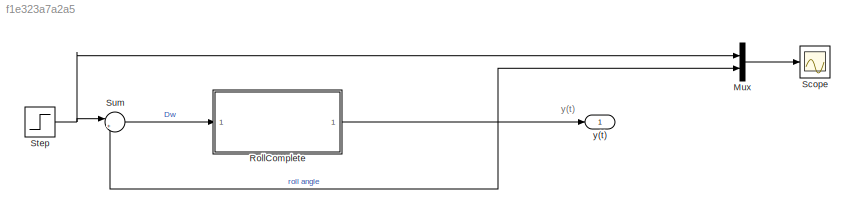
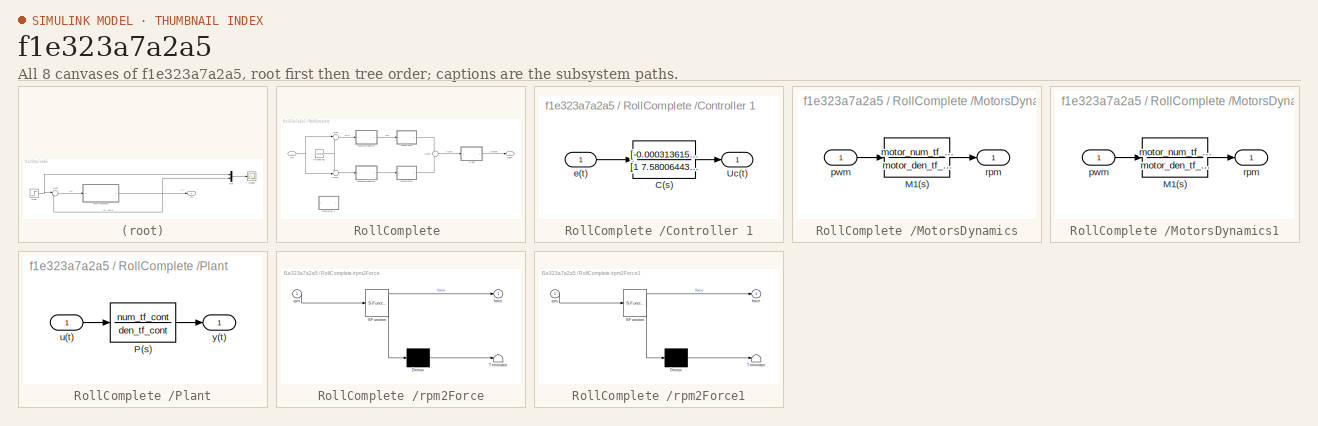
[diagram: thumbnail index - all 8 canvases of the model, root first then tree order]
MODEL slx_f1e323a7a2a5
KIND model
BLOCK [Mux] Mux
  DisplayOption = bar
  Inputs = 2
  Ports = [2, 1]
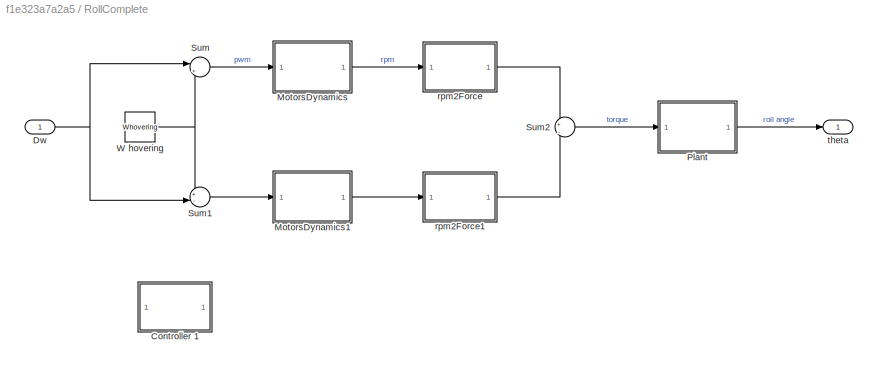
BLOCK [SubSystem] RollComplete 
  Ports = [1, 1]
  RequestExecContextInheritance = off
BLOCK [SubSystem] RollComplete /Controller 1
  Ports = [1, 1]
  RequestExecContextInheritance = off
BLOCK [TransferFcn] RollComplete /Controller 1/C(s) 
  Denominator = [1 7.58006443134047]
  Numerator = [-0.00031361544224957 0.0105787614058996]
BLOCK [Outport] RollComplete /Controller 1/Uc(t)
  IconDisplay = Port number
BLOCK [Inport] RollComplete /Controller 1/e(t)
  IconDisplay = Port number
BLOCK [Inport] RollComplete /Dw 
  IconDisplay = Port number
BLOCK [SubSystem] RollComplete /MotorsDynamics
  Ports = [1, 1]
  RequestExecContextInheritance = off
BLOCK [TransferFcn] RollComplete /MotorsDynamics/M1(s)
  ContinuousStateAttributes = 'phi'
  Denominator = motor_den_tf_discrete
  Numerator = motor_num_tf_discrete
BLOCK [Inport] RollComplete /MotorsDynamics/pwm
  IconDisplay = Port number
BLOCK [Outport] RollComplete /MotorsDynamics/rpm
  IconDisplay = Port number
BLOCK [SubSystem] RollComplete /MotorsDynamics1
  Ports = [1, 1]
  RequestExecContextInheritance = off
BLOCK [TransferFcn] RollComplete /MotorsDynamics1/M1(s)
  ContinuousStateAttributes = 'phi'
  Denominator = motor_den_tf_discrete
  Numerator = motor_num_tf_discrete
BLOCK [Inport] RollComplete /MotorsDynamics1/pwm
  IconDisplay = Port number
BLOCK [Outport] RollComplete /MotorsDynamics1/rpm
  IconDisplay = Port number
BLOCK [SubSystem] RollComplete /Plant
  Ports = [1, 1]
  RequestExecContextInheritance = off
BLOCK [TransferFcn] RollComplete /Plant/P(s)
  ContinuousStateAttributes = 'phi'
  Denominator = den_tf_cont
  Numerator = num_tf_cont
BLOCK [Inport] RollComplete /Plant/u(t)
  IconDisplay = Port number
BLOCK [Outport] RollComplete /Plant/y(t)
  IconDisplay = Port number
BLOCK [Sum] RollComplete /Sum
  IconShape = round
  InputSameDT = off
  Inputs = |++
  OutDataTypeStr = Inherit: Inherit via internal rule
  Ports = [2, 1]
  SaturateOnIntegerOverflow = off
BLOCK [Sum] RollComplete /Sum1
  IconShape = round
  InputSameDT = off
  Inputs = +-|
  OutDataTypeStr = Inherit: Inherit via internal rule
  Ports = [2, 1]
  SaturateOnIntegerOverflow = off
BLOCK [Sum] RollComplete /Sum2
  IconShape = round
  InputSameDT = off
  Inputs = +|-
  OutDataTypeStr = Inherit: Inherit via internal rule
  Ports = [2, 1]
  SaturateOnIntegerOverflow = off
BLOCK [Constant] RollComplete /W hovering
  Value = Whovering
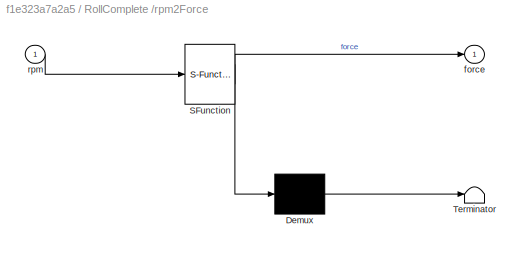
BLOCK [SubSystem] RollComplete /rpm2Force
  ErrorFcn = Stateflow.Translate.translate
  PermitHierarchicalResolution = ExplicitOnly
  Ports = [1, 1]
  RequestExecContextInheritance = off
  SFBlockType = MATLAB Function
  TreatAsAtomicUnit = on
BLOCK [Demux] RollComplete /rpm2Force/ Demux 
  Outputs = 1
  Ports = [1, 1]
BLOCK [S-Function] RollComplete /rpm2Force/ SFunction 
  EnableBusSupport = on
  FunctionName = sf_sfun
  PortCounts = [1 2]
  Ports = [1, 2]
  Tag = Stateflow S-Function testRollContSolo 2
BLOCK [Terminator] RollComplete /rpm2Force/ Terminator 
BLOCK [Outport] RollComplete /rpm2Force/force
  IconDisplay = Port number
BLOCK [Inport] RollComplete /rpm2Force/rpm
  IconDisplay = Port number
BLOCK [SubSystem] RollComplete /rpm2Force1
  ErrorFcn = Stateflow.Translate.translate
  PermitHierarchicalResolution = ExplicitOnly
  Ports = [1, 1]
  RequestExecContextInheritance = off
  SFBlockType = MATLAB Function
  TreatAsAtomicUnit = on
BLOCK [Demux] RollComplete /rpm2Force1/ Demux 
  Outputs = 1
  Ports = [1, 1]
BLOCK [S-Function] RollComplete /rpm2Force1/ SFunction 
  EnableBusSupport = on
  FunctionName = sf_sfun
  PortCounts = [1 2]
  Ports = [1, 2]
  Tag = Stateflow S-Function testRollContSolo 1
BLOCK [Terminator] RollComplete /rpm2Force1/ Terminator 
BLOCK [Outport] RollComplete /rpm2Force1/force
  IconDisplay = Port number
BLOCK [Inport] RollComplete /rpm2Force1/rpm
  IconDisplay = Port number
BLOCK [Outport] RollComplete /theta 
  IconDisplay = Port number
BLOCK [Scope] Scope
  DataFormat = StructureWithTime
  Floating = off
  NumInputPorts = 1
  Ports = [1]
  SampleTime = 0
  ShowLegends = off
BLOCK [Step] Step
  After = 40
  SampleTime = 0
  Time = 0
BLOCK [Sum] Sum
  IconShape = round
  InputSameDT = off
  Inputs = |+-
  OutDataTypeStr = Inherit: Inherit via internal rule
  Ports = [2, 1]
  SaturateOnIntegerOverflow = off
BLOCK [Outport] y(t)
  IconDisplay = Port number
ANNOTATION (root): y(t)
LINE Mux:1 -> Scope:1
LINE RollComplete /Controller 1/C(s) :1 -> RollComplete /Controller 1/Uc(t):1
LINE RollComplete /Controller 1/e(t):1 -> RollComplete /Controller 1/C(s) :1
NET RollComplete /Dw :1 -> RollComplete /Sum1:2, RollComplete /Sum:1
LINE RollComplete /MotorsDynamics/M1(s):1 -> RollComplete /MotorsDynamics/rpm:1
LINE RollComplete /MotorsDynamics/pwm:1 -> RollComplete /MotorsDynamics/M1(s):1
LINE RollComplete /MotorsDynamics1/M1(s):1 -> RollComplete /MotorsDynamics1/rpm:1
LINE RollComplete /MotorsDynamics1/pwm:1 -> RollComplete /MotorsDynamics1/M1(s):1
LINE RollComplete /MotorsDynamics1:1 -> RollComplete /rpm2Force1:1
LINE RollComplete /MotorsDynamics:1 -> RollComplete /rpm2Force:1
LINE RollComplete /Plant/P(s):1 -> RollComplete /Plant/y(t):1
LINE RollComplete /Plant/u(t):1 -> RollComplete /Plant/P(s):1
LINE RollComplete /Plant:1 -> RollComplete /theta :1
LINE RollComplete /Sum1:1 -> RollComplete /MotorsDynamics1:1
LINE RollComplete /Sum2:1 -> RollComplete /Plant:1
LINE RollComplete /Sum:1 -> RollComplete /MotorsDynamics:1
NET RollComplete /W hovering:1 -> RollComplete /Sum1:1, RollComplete /Sum:2
LINE RollComplete /rpm2Force1:1 -> RollComplete /Sum2:2
LINE RollComplete /rpm2Force:1 -> RollComplete /Sum2:1
NET RollComplete :1 -> Mux:2, Sum:2, y(t):1
NET Step:1 -> Mux:1, Sum:1
LINE Sum:1 -> RollComplete :1
note: NET lines group one-source signal fan-out (src -> all destinations, sorted); 1:1 wires keep LINE
